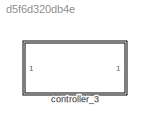
MODEL slx_d5f6d320db4e
KIND model
CONFIG AbsTol = auto
CONFIG EnableMultiTasking = off
CONFIG FixedStep = auto
CONFIG MaxStep = auto
CONFIG MinStep = auto
CONFIG RelTol = 1e-3
CONFIG SampleTimeConstraint = Unconstrained
CONFIG SolverName = VariableStepAuto
CONFIG StartTime = 0.0
CONFIG StopTime = 10.0
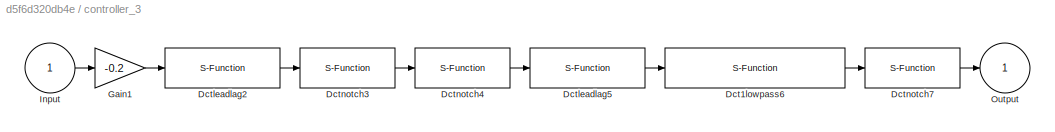
BLOCK [SubSystem] controller_3
BLOCK [S-Function] controller_3/Dct1lowpass6
  EnableBusSupport = off
  FunctionName = dlowpass1
  Parameters = f_den, 0.001
  SFcnIsStateOwnerBlock = off
  SFunctionDeploymentMode = off
BLOCK [S-Function] controller_3/Dctleadlag2
  EnableBusSupport = off
  FunctionName = dleadlag
  Parameters = f_num, f_den, 0.001
  SFcnIsStateOwnerBlock = off
  SFunctionDeploymentMode = off
BLOCK [S-Function] controller_3/Dctleadlag5
  EnableBusSupport = off
  FunctionName = dleadlag
  Parameters = f_num, f_den, 0.001
  SFcnIsStateOwnerBlock = off
  SFunctionDeploymentMode = off
BLOCK [S-Function] controller_3/Dctnotch3
  EnableBusSupport = off
  FunctionName = dnotch
  Parameters = f_num, b_num, f_den, b_den, 0.001
  SFcnIsStateOwnerBlock = off
  SFunctionDeploymentMode = off
BLOCK [S-Function] controller_3/Dctnotch4
  EnableBusSupport = off
  FunctionName = dnotch
  Parameters = f_num, b_num, f_den, b_den, 0.001
  SFcnIsStateOwnerBlock = off
  SFunctionDeploymentMode = off
BLOCK [S-Function] controller_3/Dctnotch7
  EnableBusSupport = off
  FunctionName = dnotch
  Parameters = f_num, b_num, f_den, b_den, 0.001
  SFcnIsStateOwnerBlock = off
  SFunctionDeploymentMode = off
BLOCK [Gain] controller_3/Gain1
  Gain = -0.2
BLOCK [Inport] controller_3/Input
BLOCK [Outport] controller_3/Output
LINE controller_3/Dct1lowpass6:1 -> controller_3/Dctnotch7:1
LINE controller_3/Dctleadlag2:1 -> controller_3/Dctnotch3:1
LINE controller_3/Dctleadlag5:1 -> controller_3/Dct1lowpass6:1
LINE controller_3/Dctnotch3:1 -> controller_3/Dctnotch4:1
LINE controller_3/Dctnotch4:1 -> controller_3/Dctleadlag5:1
LINE controller_3/Dctnotch7:1 -> controller_3/Output:1
LINE controller_3/Gain1:1 -> controller_3/Dctleadlag2:1
LINE controller_3/Input:1 -> controller_3/Gain1:1
